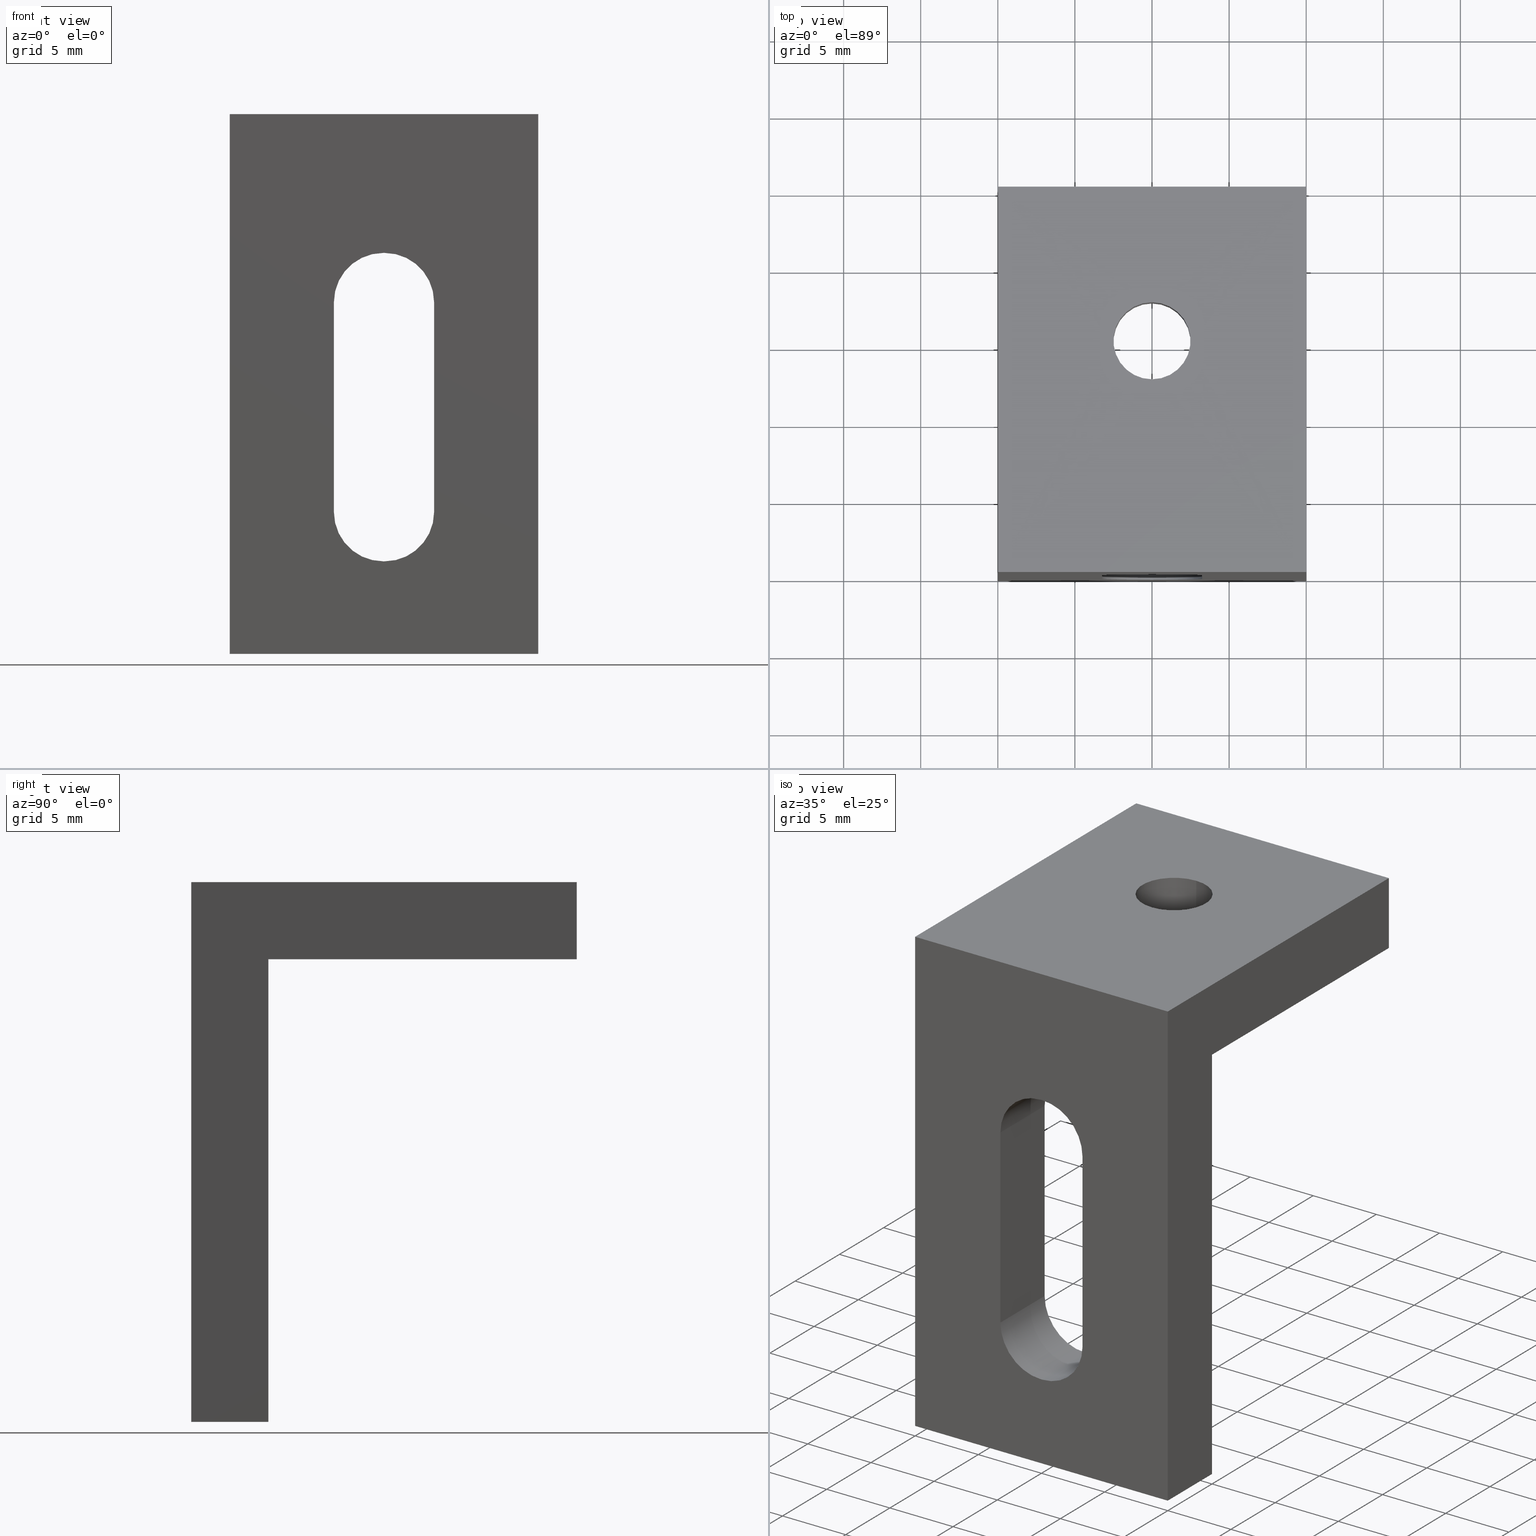
[diagram: canonical four-view strip — front | top / right | iso, engineering-drawing reading convention]
A machine part, canonical four-view strip (front | top / right | iso — engineering-drawing reading convention). The complete STEP part file that produces these views, byte-faithful:
ISO-10303-21;
HEADER;
FILE_DESCRIPTION (( 'STEP AP203' ),
    '1' );
FILE_NAME ('A30-65.STEP',
    '2018-03-20T14:13:54',
    ( 'User2' ),
    ( '' ),
    'SwSTEP 2.0',
    'SolidWorks 2007',
    '' );
FILE_SCHEMA (( 'CONFIG_CONTROL_DESIGN' ));
ENDSEC;

DATA;
#1 = CARTESIAN_POINT ( 'NONE',  ( 9.950000000000008200, 4.999999999999996400, -9.000000000000007100 ) ) ;
#2 = VERTEX_POINT ( 'NONE', #33 ) ;
#3 = CARTESIAN_POINT ( 'NONE',  ( 0.0000000000000000000, 0.0000000000000000000, 0.0000000000000000000 ) ) ;
#4 = VERTEX_POINT ( 'NONE', #23 ) ;
#5 = CARTESIAN_POINT ( 'NONE',  ( 20.00000000000000000, 0.0000000000000000000, -35.00000000000000000 ) ) ;
#6 = CARTESIAN_POINT ( 'NONE',  ( 9.999999999999998200, 12.49999999999999800, 1.528208776455758600E-015 ) ) ;
#7 = DIRECTION ( 'NONE',  ( -0.0000000000000000000, -1.000000000000000000, -1.652117596168388200E-016 ) ) ;
#8 = DIRECTION ( 'NONE',  ( 0.0000000000000000000, 1.000000000000000000, 1.652117596168388200E-016 ) ) ;
#9 = DIRECTION ( 'NONE',  ( 0.0000000000000000000, 1.000000000000000000, 8.260587980841943700E-017 ) ) ;
#10 = CARTESIAN_POINT ( 'NONE',  ( 6.750000000000008000, 4.999999999999999100, -25.80000000000000400 ) ) ;
#11 = CARTESIAN_POINT ( 'NONE',  ( 20.00000000000000000, 25.00000000000000000, -1.850437868103648700E-015 ) ) ;
#12 = CARTESIAN_POINT ( 'NONE',  ( 13.25000000000000500, 4.999999999999997300, -12.20000000000000600 ) ) ;
#13 = CARTESIAN_POINT ( 'NONE',  ( 20.00000000000000000, 0.0000000000000000000, 0.0000000000000000000 ) ) ;
#14 = CARTESIAN_POINT ( 'NONE',  ( 0.0000000000000000000, 25.00000000000000000, -1.850437868103648700E-015 ) ) ;
#15 = VERTEX_POINT ( 'NONE', #18 ) ;
#16 = CARTESIAN_POINT ( 'NONE',  ( 10.05000000000000600, -8.673617379884035500E-016, -29.00000000000000700 ) ) ;
#17 = VERTEX_POINT ( 'NONE', #70 ) ;
#18 = CARTESIAN_POINT ( 'NONE',  ( 20.00000000000000000, 4.999999999999995600, -5.000000000000000900 ) ) ;
#19 = VERTEX_POINT ( 'NONE', #13 ) ;
#20 = VERTEX_POINT ( 'NONE', #31 ) ;
#21 = VERTEX_POINT ( 'NONE', #58 ) ;
#22 = VERTEX_POINT ( 'NONE', #72 ) ;
#23 = CARTESIAN_POINT ( 'NONE',  ( 9.950000000000006400, 5.000000000000000000, -29.00000000000000400 ) ) ;
#24 = VERTEX_POINT ( 'NONE', #68 ) ;
#25 = VERTEX_POINT ( 'NONE', #3 ) ;
#26 = CARTESIAN_POINT ( 'NONE',  ( 13.25000000000000900, -1.422473250300982000E-015, -25.80000000000000800 ) ) ;
#27 = DIRECTION ( 'NONE',  ( -1.000000000000000000, -0.0000000000000000000, -0.0000000000000000000 ) ) ;
#28 = CARTESIAN_POINT ( 'NONE',  ( 0.0000000000000000000, 4.999999999999995600, -5.000000000000000900 ) ) ;
#29 = CARTESIAN_POINT ( 'NONE',  ( 9.999999999999998200, 12.49999999999999800, -5.000000000000000000 ) ) ;
#30 = DIRECTION ( 'NONE',  ( 0.0000000000000000000, 1.000000000000000000, 8.260587980841943700E-017 ) ) ;
#31 = CARTESIAN_POINT ( 'NONE',  ( 10.05000000000000400, -4.336808689942017700E-015, -9.000000000000007100 ) ) ;
#32 = DIRECTION ( 'NONE',  ( 0.0000000000000000000, 0.0000000000000000000, 1.000000000000000000 ) ) ;
#33 = CARTESIAN_POINT ( 'NONE',  ( 13.25000000000000500, 4.999999999999997300, -12.20000000000000600 ) ) ;
#34 = CARTESIAN_POINT ( 'NONE',  ( 20.00000000000000000, 25.00000000000000000, -5.000000000000000000 ) ) ;
#35 = VERTEX_POINT ( 'NONE', #59 ) ;
#36 = VERTEX_POINT ( 'NONE', #6 ) ;
#37 = DIRECTION ( 'NONE',  ( 0.0000000000000000000, -1.000000000000000000, -1.652117596168388200E-016 ) ) ;
#38 = VERTEX_POINT ( 'NONE', #29 ) ;
#39 = CARTESIAN_POINT ( 'NONE',  ( 6.750000000000008000, -3.781697177629438700E-015, -12.20000000000001000 ) ) ;
#40 = VERTEX_POINT ( 'NONE', #61 ) ;
#41 = CARTESIAN_POINT ( 'NONE',  ( 9.999999999999998200, 15.00000000000000000, 1.734723475976807100E-015 ) ) ;
#42 = CARTESIAN_POINT ( 'NONE',  ( 9.999999999999998200, 15.00000000000000000, 1.734723475976807100E-015 ) ) ;
#43 = VERTEX_POINT ( 'NONE', #26 ) ;
#44 = DIRECTION ( 'NONE',  ( 0.0000000000000000000, 1.652117596168387500E-016, -1.000000000000000000 ) ) ;
#45 = VERTEX_POINT ( 'NONE', #39 ) ;
#46 = VERTEX_POINT ( 'NONE', #34 ) ;
#47 = CARTESIAN_POINT ( 'NONE',  ( 10.05000000000000400, 3.359795370016192900E-031, -9.000000000000007100 ) ) ;
#48 = CARTESIAN_POINT ( 'NONE',  ( 20.00000000000000000, 25.00000000000000000, -1.850437868103648700E-015 ) ) ;
#49 = VERTEX_POINT ( 'NONE', #1 ) ;
#50 = VERTEX_POINT ( 'NONE', #16 ) ;
#51 = CARTESIAN_POINT ( 'NONE',  ( 6.750000000000008000, 4.999999999999997300, -12.20000000000001000 ) ) ;
#52 = CARTESIAN_POINT ( 'NONE',  ( 0.0000000000000000000, 5.000000000000000000, -35.00000000000000000 ) ) ;
#53 = CARTESIAN_POINT ( 'NONE',  ( 9.950000000000008200, -1.396039368762287700E-015, -25.80000000000000400 ) ) ;
#54 = CARTESIAN_POINT ( 'NONE',  ( 0.0000000000000000000, 25.00000000000000000, -5.000000000000000000 ) ) ;
#55 = VERTEX_POINT ( 'NONE', #10 ) ;
#56 = VERTEX_POINT ( 'NONE', #57 ) ;
#57 = CARTESIAN_POINT ( 'NONE',  ( 20.00000000000000000, 5.000000000000000000, -35.00000000000000000 ) ) ;
#58 = CARTESIAN_POINT ( 'NONE',  ( 6.750000000000008000, -1.422473250300982200E-015, -25.80000000000000400 ) ) ;
#59 = CARTESIAN_POINT ( 'NONE',  ( 13.25000000000000900, 4.999999999999999100, -25.80000000000000800 ) ) ;
#60 = VERTEX_POINT ( 'NONE', #11 ) ;
#61 = CARTESIAN_POINT ( 'NONE',  ( 10.05000000000000600, 5.000000000000000000, -29.00000000000000700 ) ) ;
#62 = DIRECTION ( 'NONE',  ( -0.0000000000000000000, -1.000000000000000000, -1.652117596168388200E-016 ) ) ;
#63 = VERTEX_POINT ( 'NONE', #5 ) ;
#64 = CARTESIAN_POINT ( 'NONE',  ( 0.0000000000000000000, 25.00000000000000000, -5.000000000000000000 ) ) ;
#65 = VERTEX_POINT ( 'NONE', #64 ) ;
#66 = CARTESIAN_POINT ( 'NONE',  ( 9.950000000000006400, -8.673617379884029600E-016, -29.00000000000000400 ) ) ;
#67 = VERTEX_POINT ( 'NONE', #75 ) ;
#68 = CARTESIAN_POINT ( 'NONE',  ( 9.950000000000006400, -8.673617379884035500E-016, -29.00000000000000400 ) ) ;
#69 = CARTESIAN_POINT ( 'NONE',  ( 9.950000000000008200, -4.336808689942017700E-015, -9.000000000000007100 ) ) ;
#70 = CARTESIAN_POINT ( 'NONE',  ( 0.0000000000000000000, 0.0000000000000000000, -35.00000000000000000 ) ) ;
#71 = CARTESIAN_POINT ( 'NONE',  ( 13.25000000000000900, -1.396039368762288100E-015, -25.80000000000000800 ) ) ;
#72 = CARTESIAN_POINT ( 'NONE',  ( 9.999999999999998200, 17.49999999999999600, -5.000000000000000000 ) ) ;
#73 = DIRECTION ( 'NONE',  ( 0.0000000000000000000, -1.445602896647339200E-016, 1.000000000000000000 ) ) ;
#74 = DIRECTION ( 'NONE',  ( 0.0000000000000000000, 1.000000000000000000, 1.652117596168388200E-016 ) ) ;
#75 = CARTESIAN_POINT ( 'NONE',  ( 9.999999999999998200, 17.49999999999999600, 1.941238175497855500E-015 ) ) ;
#76 = VERTEX_POINT ( 'NONE', #52 ) ;
#77 = DIRECTION ( 'NONE',  ( -0.0000000000000000000, 8.260587980841936300E-017, -1.000000000000000000 ) ) ;
#78 = VERTEX_POINT ( 'NONE', #28 ) ;
#79 = CARTESIAN_POINT ( 'NONE',  ( 13.25000000000000500, -3.781697177629438700E-015, -12.20000000000000600 ) ) ;
#80 = CARTESIAN_POINT ( 'NONE',  ( 0.0000000000000000000, 5.000000000000000000, -35.00000000000000000 ) ) ;
#81 = VERTEX_POINT ( 'NONE', #51 ) ;
#82 = CARTESIAN_POINT ( 'NONE',  ( 10.05000000000000400, 4.999999999999996400, -9.000000000000007100 ) ) ;
#83 = DIRECTION ( 'NONE',  ( -0.0000000000000000000, 8.260587980841936300E-017, -1.000000000000000000 ) ) ;
#84 = VERTEX_POINT ( 'NONE', #82 ) ;
#85 = VERTEX_POINT ( 'NONE', #69 ) ;
#86 = CARTESIAN_POINT ( 'NONE',  ( 9.950000000000008200, 4.999999999999996400, -9.000000000000007100 ) ) ;
#87 = DIRECTION ( 'NONE',  ( -0.0000000000000000000, -1.000000000000000000, -1.652117596168388200E-016 ) ) ;
#88 = VERTEX_POINT ( 'NONE', #14 ) ;
#89 = VERTEX_POINT ( 'NONE', #79 ) ;
#90 = DESIGN_CONTEXT ( 'detailed design', #580, 'design' ) ;
#91 = PRODUCT_DEFINITION_SHAPE ( 'NONE', 'NONE',  #606 ) ;
#92 = DIRECTION ( 'NONE',  ( 0.0000000000000000000, 0.0000000000000000000, 1.000000000000000000 ) ) ;
#93 = PLANE ( 'NONE',  #446 ) ;
#94 = DIRECTION ( 'NONE',  ( 1.734723475976806800E-016, 0.0000000000000000000, -1.000000000000000000 ) ) ;
#95 = CARTESIAN_POINT ( 'NONE',  ( 20.00000000000000000, 5.000000000000000000, -35.00000000000000000 ) ) ;
#96 = PLANE ( 'NONE',  #441 ) ;
#97 = DIRECTION ( 'NONE',  ( 0.0000000000000000000, 0.0000000000000000000, 1.000000000000000000 ) ) ;
#98 = CARTESIAN_POINT ( 'NONE',  ( 20.00000000000000000, 0.0000000000000000000, -35.00000000000000000 ) ) ;
#99 = PLANE ( 'NONE',  #439 ) ;
#100 = CARTESIAN_POINT ( 'NONE',  ( 20.00000000000000000, 4.999999999999995600, -5.000000000000000900 ) ) ;
#101 = DIRECTION ( 'NONE',  ( 0.0000000000000000000, -1.000000000000000000, -1.445602896647339200E-016 ) ) ;
#102 = DIRECTION ( 'NONE',  ( 0.0000000000000000000, 1.000000000000000000, -7.401751472414593800E-017 ) ) ;
#103 = CARTESIAN_POINT ( 'NONE',  ( 20.00000000000000000, 25.00000000000000000, -1.850437868103648700E-015 ) ) ;
#104 = DIRECTION ( 'NONE',  ( 0.0000000000000000000, -7.401751472414593800E-017, -1.000000000000000000 ) ) ;
#105 = CARTESIAN_POINT ( 'NONE',  ( 20.00000000000000000, 5.000000000000000000, -35.00000000000000000 ) ) ;
#106 = DIRECTION ( 'NONE',  ( 0.0000000000000000000, 1.445602896647339200E-016, -1.000000000000000000 ) ) ;
#107 = PLANE ( 'NONE',  #449 ) ;
#108 = PLANE ( 'NONE',  #451 ) ;
#109 = PLANE ( 'NONE',  #443 ) ;
#110 = CARTESIAN_POINT ( 'NONE',  ( 10.05000000000000400, 0.0000000000000000000, -12.20000000000000600 ) ) ;
#111 = DIRECTION ( 'NONE',  ( 0.0000000000000000000, 0.0000000000000000000, 1.000000000000000000 ) ) ;
#112 = DIRECTION ( 'NONE',  ( -0.0000000000000000000, 1.000000000000000000, 0.0000000000000000000 ) ) ;
#113 = DIRECTION ( 'NONE',  ( -1.000000000000000000, -0.0000000000000000000, 5.337610695313252400E-016 ) ) ;
#114 = DIRECTION ( 'NONE',  ( 0.0000000000000000000, 2.710505431213761100E-016, -1.000000000000000000 ) ) ;
#115 = DIRECTION ( 'NONE',  ( -1.000000000000000000, -0.0000000000000000000, 0.0000000000000000000 ) ) ;
#116 = PLANE ( 'NONE',  #447 ) ;
#117 = DIRECTION ( 'NONE',  ( 0.0000000000000000000, -0.0000000000000000000, -1.000000000000000000 ) ) ;
#118 = DIRECTION ( 'NONE',  ( -1.000000000000000000, 0.0000000000000000000, 0.0000000000000000000 ) ) ;
#119 = CARTESIAN_POINT ( 'NONE',  ( 0.0000000000000000000, 25.00000000000000000, -35.00000000000000000 ) ) ;
#120 = CARTESIAN_POINT ( 'NONE',  ( 6.750000000000008000, 5.000000000000000000, -29.00000000000000400 ) ) ;
#121 = DIRECTION ( 'NONE',  ( -0.0000000000000000000, 1.000000000000000000, 0.0000000000000000000 ) ) ;
#122 = CARTESIAN_POINT ( 'NONE',  ( 20.00000000000000000, 0.0000000000000000000, 0.0000000000000000000 ) ) ;
#123 = DIRECTION ( 'NONE',  ( 0.0000000000000000000, -0.0000000000000000000, 1.000000000000000000 ) ) ;
#124 = PLANE ( 'NONE',  #448 ) ;
#125 = DIRECTION ( 'NONE',  ( 0.0000000000000000000, -4.336808689942017100E-017, 1.000000000000000000 ) ) ;
#126 = PLANE ( 'NONE',  #438 ) ;
#127 = CARTESIAN_POINT ( 'NONE',  ( 9.950000000000008200, 4.999999999999996400, -12.20000000000000800 ) ) ;
#128 = PLANE ( 'NONE',  #553 ) ;
#129 = DIRECTION ( 'NONE',  ( 0.0000000000000000000, -1.000000000000000000, 0.0000000000000000000 ) ) ;
#130 = PLANE ( 'NONE',  #450 ) ;
#131 = DIRECTION ( 'NONE',  ( -5.337610695313253400E-016, 1.652117596168388200E-016, -1.000000000000000000 ) ) ;
#132 = CARTESIAN_POINT ( 'NONE',  ( 6.750000000000008000, -8.673617379884035500E-016, -29.00000000000000400 ) ) ;
#133 = DIRECTION ( 'NONE',  ( 0.0000000000000000000, -1.000000000000000000, -1.445602896647339200E-016 ) ) ;
#134 = PLANE ( 'NONE',  #437 ) ;
#135 = DIRECTION ( 'NONE',  ( 0.0000000000000000000, 1.652117596168389000E-016, -1.000000000000000000 ) ) ;
#136 = CARTESIAN_POINT ( 'NONE',  ( 20.00000000000000000, 25.00000000000000000, -5.000000000000000000 ) ) ;
#137 = CARTESIAN_POINT ( 'NONE',  ( 10.05000000000000800, 4.999999999999998200, -25.80000000000000800 ) ) ;
#138 = DIRECTION ( 'NONE',  ( 0.0000000000000000000, -1.000000000000000000, -1.652117596168388200E-016 ) ) ;
#139 = DIRECTION ( 'NONE',  ( 0.0000000000000000000, 2.710505431213759600E-016, -1.000000000000000000 ) ) ;
#140 = CARTESIAN_POINT ( 'NONE',  ( 6.750000000000008000, -8.673617379884035500E-016, -29.00000000000000400 ) ) ;
#141 = CARTESIAN_POINT ( 'NONE',  ( 20.00000000000000000, 5.000000000000000000, -35.00000000000000000 ) ) ;
#142 = DIRECTION ( 'NONE',  ( 0.0000000000000000000, -1.000000000000000000, -1.445602896647339200E-016 ) ) ;
#143 = CARTESIAN_POINT ( 'NONE',  ( 20.00000000000000000, 25.00000000000000000, -5.000000000000000000 ) ) ;
#144 = DIRECTION ( 'NONE',  ( -1.000000000000000000, -0.0000000000000000000, -0.0000000000000000000 ) ) ;
#145 = CARTESIAN_POINT ( 'NONE',  ( 6.750000000000008000, -4.336808689942017700E-015, -9.000000000000007100 ) ) ;
#146 = DIRECTION ( 'NONE',  ( 0.0000000000000000000, 0.0000000000000000000, 1.000000000000000000 ) ) ;
#147 = CARTESIAN_POINT ( 'NONE',  ( 9.950000000000008200, -3.808131059168133200E-015, -12.20000000000000800 ) ) ;
#148 = DIRECTION ( 'NONE',  ( 0.0000000000000000000, 1.652117596168389000E-016, -1.000000000000000000 ) ) ;
#149 = CARTESIAN_POINT ( 'NONE',  ( 20.00000000000000000, 25.00000000000000000, -35.00000000000000000 ) ) ;
#150 = DIRECTION ( 'NONE',  ( 1.000000000000000000, 0.0000000000000000000, -0.0000000000000000000 ) ) ;
#151 = CARTESIAN_POINT ( 'NONE',  ( 10.05000000000000400, -3.642919299551295700E-015, -12.20000000000000600 ) ) ;
#152 = DIRECTION ( 'NONE',  ( 1.000000000000000000, 0.0000000000000000000, 2.668805347656628200E-016 ) ) ;
#153 = CARTESIAN_POINT ( 'NONE',  ( 13.25000000000000900, -8.673617379884035500E-016, -29.00000000000000700 ) ) ;
#154 = DIRECTION ( 'NONE',  ( 0.0000000000000000000, 0.0000000000000000000, 1.000000000000000000 ) ) ;
#155 = CARTESIAN_POINT ( 'NONE',  ( 6.750000000000008000, -8.673617379884035500E-016, -29.00000000000000400 ) ) ;
#156 = DIRECTION ( 'NONE',  ( 0.0000000000000000000, 0.0000000000000000000, 1.000000000000000000 ) ) ;
#157 = DIRECTION ( 'NONE',  ( 0.0000000000000000000, -1.000000000000000000, -4.336808689942017100E-017 ) ) ;
#158 = DIRECTION ( 'NONE',  ( -1.000000000000000000, 0.0000000000000000000, 0.0000000000000000000 ) ) ;
#159 = DIRECTION ( 'NONE',  ( 0.0000000000000000000, -1.000000000000000000, -1.652117596168388200E-016 ) ) ;
#160 = DIRECTION ( 'NONE',  ( 1.000000000000000000, -2.865967179147672700E-032, 1.734723475976806800E-016 ) ) ;
#161 = CARTESIAN_POINT ( 'NONE',  ( 10.05000000000000800, -1.396039368762287500E-015, -25.80000000000000800 ) ) ;
#162 = DIRECTION ( 'NONE',  ( -1.000000000000000000, 0.0000000000000000000, 5.337610695313253400E-016 ) ) ;
#163 = DIRECTION ( 'NONE',  ( 0.0000000000000000000, -1.734723475976807300E-016, 1.000000000000000000 ) ) ;
#164 = DIRECTION ( 'NONE',  ( 0.0000000000000000000, -1.000000000000000000, -1.652117596168388200E-016 ) ) ;
#165 = DIRECTION ( 'NONE',  ( 0.0000000000000000000, 1.652117596168387500E-016, -1.000000000000000000 ) ) ;
#166 = DIRECTION ( 'NONE',  ( -2.668805347656628200E-016, -1.652117596168388200E-016, 1.000000000000000000 ) ) ;
#167 = ORIENTED_EDGE ( 'NONE', *, *, #563, .T. ) ;
#168 = VECTOR ( 'NONE', #480, 1000.000000000000000 ) ;
#169 = ORIENTED_EDGE ( 'NONE', *, *, #556, .T. ) ;
#170 = ORIENTED_EDGE ( 'NONE', *, *, #636, .F. ) ;
#171 = FACE_OUTER_BOUND ( 'NONE', #389, .T. ) ;
#172 = ORIENTED_EDGE ( 'NONE', *, *, #648, .F. ) ;
#173 = FACE_BOUND ( 'NONE', #365, .T. ) ;
#174 = ORIENTED_EDGE ( 'NONE', *, *, #491, .F. ) ;
#175 = FACE_OUTER_BOUND ( 'NONE', #300, .T. ) ;
#176 = ORIENTED_EDGE ( 'NONE', *, *, #568, .T. ) ;
#177 = ORIENTED_EDGE ( 'NONE', *, *, #555, .F. ) ;
#178 = ORIENTED_EDGE ( 'NONE', *, *, #567, .F. ) ;
#179 = FACE_BOUND ( 'NONE', #191, .T. ) ;
#180 = ORIENTED_EDGE ( 'NONE', *, *, #576, .T. ) ;
#181 = ORIENTED_EDGE ( 'NONE', *, *, #647, .F. ) ;
#182 = ORIENTED_EDGE ( 'NONE', *, *, #649, .F. ) ;
#183 = ORIENTED_EDGE ( 'NONE', *, *, #634, .T. ) ;
#184 = CIRCLE ( 'NONE', #615, 2.499999999999998700 ) ;
#185 = LINE ( 'NONE', #523, #347 ) ;
#186 = ORIENTED_EDGE ( 'NONE', *, *, #575, .F. ) ;
#187 = ORIENTED_EDGE ( 'NONE', *, *, #496, .F. ) ;
#188 = FACE_OUTER_BOUND ( 'NONE', #372, .T. ) ;
#189 = VECTOR ( 'NONE', #551, 1000.000000000000000 ) ;
#190 = ORIENTED_EDGE ( 'NONE', *, *, #651, .F. ) ;
#191 = EDGE_LOOP ( 'NONE', ( #318, #253, #208, #202, #169, #249, #363, #348 ) ) ;
#192 = VECTOR ( 'NONE', #623, 1000.000000000000000 ) ;
#193 = VECTOR ( 'NONE', #463, 1000.000000000000000 ) ;
#194 = ORIENTED_EDGE ( 'NONE', *, *, #577, .T. ) ;
#195 = ORIENTED_EDGE ( 'NONE', *, *, #640, .F. ) ;
#196 = LINE ( 'NONE', #543, #375 ) ;
#197 = ORIENTED_EDGE ( 'NONE', *, *, #561, .F. ) ;
#198 = ORIENTED_EDGE ( 'NONE', *, *, #491, .T. ) ;
#199 = EDGE_LOOP ( 'NONE', ( #245, #243, #177, #355 ) ) ;
#200 = ORIENTED_EDGE ( 'NONE', *, *, #565, .F. ) ;
#201 = LINE ( 'NONE', #464, #306 ) ;
#202 = ORIENTED_EDGE ( 'NONE', *, *, #575, .T. ) ;
#203 = ORIENTED_EDGE ( 'NONE', *, *, #650, .F. ) ;
#204 = ORIENTED_EDGE ( 'NONE', *, *, #497, .F. ) ;
#205 = ORIENTED_EDGE ( 'NONE', *, *, #572, .F. ) ;
#206 = ORIENTED_EDGE ( 'NONE', *, *, #570, .F. ) ;
#207 = ORIENTED_EDGE ( 'NONE', *, *, #572, .T. ) ;
#208 = ORIENTED_EDGE ( 'NONE', *, *, #640, .T. ) ;
#209 = ORIENTED_EDGE ( 'NONE', *, *, #560, .F. ) ;
#210 = ORIENTED_EDGE ( 'NONE', *, *, #639, .T. ) ;
#211 = VECTOR ( 'NONE', #548, 1000.000000000000000 ) ;
#212 = ORIENTED_EDGE ( 'NONE', *, *, #493, .T. ) ;
#213 = ORIENTED_EDGE ( 'NONE', *, *, #497, .T. ) ;
#214 = FACE_OUTER_BOUND ( 'NONE', #324, .T. ) ;
#215 = FACE_OUTER_BOUND ( 'NONE', #368, .T. ) ;
#216 = ORIENTED_EDGE ( 'NONE', *, *, #641, .T. ) ;
#217 = ORIENTED_EDGE ( 'NONE', *, *, #644, .T. ) ;
#218 = ORIENTED_EDGE ( 'NONE', *, *, #649, .T. ) ;
#219 = EDGE_LOOP ( 'NONE', ( #197, #187, #172, #174 ) ) ;
#220 = EDGE_LOOP ( 'NONE', ( #232, #230, #286, #225 ) ) ;
#221 = LINE ( 'NONE', #538, #377 ) ;
#222 = CIRCLE ( 'NONE', #602, 2.499999999999998700 ) ;
#223 = ORIENTED_EDGE ( 'NONE', *, *, #554, .T. ) ;
#224 = FACE_OUTER_BOUND ( 'NONE', #381, .T. ) ;
#225 = ORIENTED_EDGE ( 'NONE', *, *, #559, .T. ) ;
#226 = ORIENTED_EDGE ( 'NONE', *, *, #559, .F. ) ;
#227 = VECTOR ( 'NONE', #484, 1000.000000000000000 ) ;
#228 = LINE ( 'NONE', #466, #310 ) ;
#229 = ORIENTED_EDGE ( 'NONE', *, *, #574, .F. ) ;
#230 = ORIENTED_EDGE ( 'NONE', *, *, #633, .F. ) ;
#231 = ORIENTED_EDGE ( 'NONE', *, *, #573, .F. ) ;
#232 = ORIENTED_EDGE ( 'NONE', *, *, #498, .T. ) ;
#233 = FACE_OUTER_BOUND ( 'NONE', #313, .T. ) ;
#234 = CIRCLE ( 'NONE', #452, 3.199999999999999700 ) ;
#235 = ORIENTED_EDGE ( 'NONE', *, *, #573, .T. ) ;
#236 = FACE_OUTER_BOUND ( 'NONE', #304, .T. ) ;
#237 = VECTOR ( 'NONE', #113, 1000.000000000000000 ) ;
#238 = CYLINDRICAL_SURFACE ( 'NONE', #571, 2.499999999999998700 ) ;
#239 = ORIENTED_EDGE ( 'NONE', *, *, #496, .T. ) ;
#240 = ORIENTED_EDGE ( 'NONE', *, *, #638, .F. ) ;
#241 = ORIENTED_EDGE ( 'NONE', *, *, #554, .F. ) ;
#242 = ORIENTED_EDGE ( 'NONE', *, *, #642, .F. ) ;
#243 = ORIENTED_EDGE ( 'NONE', *, *, #494, .F. ) ;
#244 = LINE ( 'NONE', #140, #379 ) ;
#245 = ORIENTED_EDGE ( 'NONE', *, *, #495, .T. ) ;
#246 = FACE_OUTER_BOUND ( 'NONE', #265, .T. ) ;
#247 = ORIENTED_EDGE ( 'NONE', *, *, #570, .T. ) ;
#248 = VECTOR ( 'NONE', #485, 1000.000000000000000 ) ;
#249 = ORIENTED_EDGE ( 'NONE', *, *, #567, .T. ) ;
#250 = ORIENTED_EDGE ( 'NONE', *, *, #634, .F. ) ;
#251 = ORIENTED_EDGE ( 'NONE', *, *, #643, .F. ) ;
#252 = CIRCLE ( 'NONE', #442, 3.200000000000001500 ) ;
#253 = ORIENTED_EDGE ( 'NONE', *, *, #565, .T. ) ;
#254 = CYLINDRICAL_SURFACE ( 'NONE', #558, 3.200000000000001500 ) ;
#255 = ORIENTED_EDGE ( 'NONE', *, *, #646, .F. ) ;
#256 = ORIENTED_EDGE ( 'NONE', *, *, #498, .F. ) ;
#257 = ORIENTED_EDGE ( 'NONE', *, *, #641, .F. ) ;
#258 = CIRCLE ( 'NONE', #603, 2.499999999999998700 ) ;
#259 = LINE ( 'NONE', #529, #294 ) ;
#260 = VECTOR ( 'NONE', #469, 1000.000000000000000 ) ;
#261 = LINE ( 'NONE', #524, #360 ) ;
#262 = LINE ( 'NONE', #95, #266 ) ;
#263 = FACE_OUTER_BOUND ( 'NONE', #322, .T. ) ;
#264 = LINE ( 'NONE', #539, #371 ) ;
#265 = EDGE_LOOP ( 'NONE', ( #176, #353, #255, #210 ) ) ;
#266 = VECTOR ( 'NONE', #477, 1000.000000000000000 ) ;
#267 = CIRCLE ( 'NONE', #444, 3.200000000000001500 ) ;
#268 = VECTOR ( 'NONE', #489, 1000.000000000000000 ) ;
#269 = ORIENTED_EDGE ( 'NONE', *, *, #494, .T. ) ;
#270 = FACE_OUTER_BOUND ( 'NONE', #219, .T. ) ;
#271 = FACE_OUTER_BOUND ( 'NONE', #220, .T. ) ;
#272 = ORIENTED_EDGE ( 'NONE', *, *, #555, .T. ) ;
#273 = ORIENTED_EDGE ( 'NONE', *, *, #635, .F. ) ;
#274 = ORIENTED_EDGE ( 'NONE', *, *, #642, .T. ) ;
#275 = ORIENTED_EDGE ( 'NONE', *, *, #650, .T. ) ;
#276 = CYLINDRICAL_SURFACE ( 'NONE', #445, 3.200000000000001500 ) ;
#277 = VECTOR ( 'NONE', #533, 1000.000000000000000 ) ;
#278 = LINE ( 'NONE', #54, #394 ) ;
#279 = ORIENTED_EDGE ( 'NONE', *, *, #566, .F. ) ;
#280 = VECTOR ( 'NONE', #550, 1000.000000000000000 ) ;
#281 = ORIENTED_EDGE ( 'NONE', *, *, #577, .F. ) ;
#282 = LINE ( 'NONE', #475, #227 ) ;
#283 = VECTOR ( 'NONE', #455, 1000.000000000000000 ) ;
#284 = ORIENTED_EDGE ( 'NONE', *, *, #651, .T. ) ;
#285 = ORIENTED_EDGE ( 'NONE', *, *, #566, .T. ) ;
#286 = ORIENTED_EDGE ( 'NONE', *, *, #563, .F. ) ;
#287 = ORIENTED_EDGE ( 'NONE', *, *, #557, .F. ) ;
#288 = ORIENTED_EDGE ( 'NONE', *, *, #645, .F. ) ;
#289 = ORIENTED_EDGE ( 'NONE', *, *, #648, .T. ) ;
#290 = ORIENTED_EDGE ( 'NONE', *, *, #557, .T. ) ;
#291 = ORIENTED_EDGE ( 'NONE', *, *, #644, .F. ) ;
#292 = CIRCLE ( 'NONE', #622, 3.200000000000001500 ) ;
#293 = CYLINDRICAL_SURFACE ( 'NONE', #562, 2.499999999999998700 ) ;
#294 = VECTOR ( 'NONE', #536, 1000.000000000000000 ) ;
#295 = ORIENTED_EDGE ( 'NONE', *, *, #637, .F. ) ;
#296 = FACE_OUTER_BOUND ( 'NONE', #343, .T. ) ;
#297 = ORIENTED_EDGE ( 'NONE', *, *, #646, .T. ) ;
#298 = FACE_OUTER_BOUND ( 'NONE', #311, .T. ) ;
#299 = LINE ( 'NONE', #12, #309 ) ;
#300 = EDGE_LOOP ( 'NONE', ( #274, #314, #346, #340 ) ) ;
#301 = LINE ( 'NONE', #525, #211 ) ;
#302 = ORIENTED_EDGE ( 'NONE', *, *, #493, .F. ) ;
#303 = ORIENTED_EDGE ( 'NONE', *, *, #564, .F. ) ;
#304 = EDGE_LOOP ( 'NONE', ( #216, #239, #181, #339 ) ) ;
#305 = LINE ( 'NONE', #457, #193 ) ;
#306 = VECTOR ( 'NONE', #456, 1000.000000000000000 ) ;
#307 = LINE ( 'NONE', #534, #315 ) ;
#308 = LINE ( 'NONE', #459, #168 ) ;
#309 = VECTOR ( 'NONE', #8, 1000.000000000000000 ) ;
#310 = VECTOR ( 'NONE', #476, 1000.000000000000000 ) ;
#311 = EDGE_LOOP ( 'NONE', ( #178, #295, #209, #350 ) ) ;
#312 = VECTOR ( 'NONE', #74, 1000.000000000000000 ) ;
#313 = EDGE_LOOP ( 'NONE', ( #195, #352, #290, #213 ) ) ;
#314 = ORIENTED_EDGE ( 'NONE', *, *, #637, .T. ) ;
#315 = VECTOR ( 'NONE', #549, 1000.000000000000000 ) ;
#316 = LINE ( 'NONE', #143, #319 ) ;
#317 = FACE_OUTER_BOUND ( 'NONE', #328, .T. ) ;
#318 = ORIENTED_EDGE ( 'NONE', *, *, #564, .T. ) ;
#319 = VECTOR ( 'NONE', #156, 1000.000000000000000 ) ;
#320 = ORIENTED_EDGE ( 'NONE', *, *, #560, .T. ) ;
#321 = LINE ( 'NONE', #626, #192 ) ;
#322 = EDGE_LOOP ( 'NONE', ( #217, #349, #190, #269 ) ) ;
#323 = ORIENTED_EDGE ( 'NONE', *, *, #569, .T. ) ;
#324 = EDGE_LOOP ( 'NONE', ( #186, #204, #335, #273 ) ) ;
#325 = FACE_OUTER_BOUND ( 'NONE', #199, .T. ) ;
#326 = VECTOR ( 'NONE', #7, 1000.000000000000000 ) ;
#327 = EDGE_LOOP ( 'NONE', ( #373, #207 ) ) ;
#328 = EDGE_LOOP ( 'NONE', ( #205, #337, #235, #281 ) ) ;
#329 = ORIENTED_EDGE ( 'NONE', *, *, #636, .T. ) ;
#330 = VECTOR ( 'NONE', #521, 1000.000000000000000 ) ;
#331 = ORIENTED_EDGE ( 'NONE', *, *, #633, .T. ) ;
#332 = LINE ( 'NONE', #522, #189 ) ;
#333 = LINE ( 'NONE', #86, #312 ) ;
#334 = VECTOR ( 'NONE', #87, 1000.000000000000000 ) ;
#335 = ORIENTED_EDGE ( 'NONE', *, *, #576, .F. ) ;
#336 = LINE ( 'NONE', #120, #237 ) ;
#337 = ORIENTED_EDGE ( 'NONE', *, *, #645, .T. ) ;
#338 = LINE ( 'NONE', #531, #277 ) ;
#339 = ORIENTED_EDGE ( 'NONE', *, *, #492, .T. ) ;
#340 = ORIENTED_EDGE ( 'NONE', *, *, #635, .T. ) ;
#341 = LINE ( 'NONE', #141, #358 ) ;
#342 = CIRCLE ( 'NONE', #607, 3.199999999999999700 ) ;
#343 = EDGE_LOOP ( 'NONE', ( #247, #240, #170, #331 ) ) ;
#344 = CYLINDRICAL_SURFACE ( 'NONE', #453, 3.199999999999999700 ) ;
#345 = CLOSED_SHELL ( 'NONE', ( #501, #511, #513, #506, #507, #514, #515, #504, #510, #503, #509, #518, #512, #517, #505, #508, #516, #502 ) ) ;
#346 = ORIENTED_EDGE ( 'NONE', *, *, #556, .F. ) ;
#347 = VECTOR ( 'NONE', #532, 1000.000000000000000 ) ;
#348 = ORIENTED_EDGE ( 'NONE', *, *, #561, .T. ) ;
#349 = ORIENTED_EDGE ( 'NONE', *, *, #639, .F. ) ;
#350 = ORIENTED_EDGE ( 'NONE', *, *, #492, .F. ) ;
#351 = ORIENTED_EDGE ( 'NONE', *, *, #495, .F. ) ;
#352 = ORIENTED_EDGE ( 'NONE', *, *, #574, .T. ) ;
#353 = ORIENTED_EDGE ( 'NONE', *, *, #569, .F. ) ;
#354 = LINE ( 'NONE', #479, #260 ) ;
#355 = ORIENTED_EDGE ( 'NONE', *, *, #638, .T. ) ;
#356 = LINE ( 'NONE', #462, #248 ) ;
#357 = LINE ( 'NONE', #487, #268 ) ;
#358 = VECTOR ( 'NONE', #144, 1000.000000000000000 ) ;
#359 = FACE_OUTER_BOUND ( 'NONE', #362, .T. ) ;
#360 = VECTOR ( 'NONE', #527, 1000.000000000000000 ) ;
#361 = ORIENTED_EDGE ( 'NONE', *, *, #568, .F. ) ;
#362 = EDGE_LOOP ( 'NONE', ( #303, #198, #285, #212 ) ) ;
#363 = ORIENTED_EDGE ( 'NONE', *, *, #647, .T. ) ;
#364 = CIRCLE ( 'NONE', #613, 2.499999999999998700 ) ;
#365 = EDGE_LOOP ( 'NONE', ( #203, #231 ) ) ;
#366 = VECTOR ( 'NONE', #530, 1000.000000000000000 ) ;
#367 = LINE ( 'NONE', #80, #397 ) ;
#368 = EDGE_LOOP ( 'NONE', ( #183, #226, #182, #323 ) ) ;
#369 = CIRCLE ( 'NONE', #436, 3.199999999999999700 ) ;
#370 = LINE ( 'NONE', #467, #283 ) ;
#371 = VECTOR ( 'NONE', #542, 1000.000000000000000 ) ;
#372 = EDGE_LOOP ( 'NONE', ( #288, #251, #194, #275 ) ) ;
#373 = ORIENTED_EDGE ( 'NONE', *, *, #643, .T. ) ;
#374 = CIRCLE ( 'NONE', #598, 3.200000000000001500 ) ;
#375 = VECTOR ( 'NONE', #545, 1000.000000000000000 ) ;
#376 = LINE ( 'NONE', #537, #330 ) ;
#377 = VECTOR ( 'NONE', #547, 1000.000000000000000 ) ;
#378 = LINE ( 'NONE', #526, #280 ) ;
#379 = VECTOR ( 'NONE', #163, 1000.000000000000000 ) ;
#380 = EDGE_LOOP ( 'NONE', ( #272, #284, #297, #218, #167, #329 ) ) ;
#381 = EDGE_LOOP ( 'NONE', ( #351, #206, #256, #250, #361, #291 ) ) ;
#382 = FACE_BOUND ( 'NONE', #387, .T. ) ;
#383 = FACE_OUTER_BOUND ( 'NONE', #380, .T. ) ;
#384 = VECTOR ( 'NONE', #62, 1000.000000000000000 ) ;
#385 = LINE ( 'NONE', #66, #326 ) ;
#386 = CYLINDRICAL_SURFACE ( 'NONE', #440, 3.199999999999999700 ) ;
#387 = EDGE_LOOP ( 'NONE', ( #257, #320, #242, #180, #287, #223, #279, #289 ) ) ;
#388 = LINE ( 'NONE', #520, #366 ) ;
#389 = EDGE_LOOP ( 'NONE', ( #200, #302, #241, #229 ) ) ;
#390 = CIRCLE ( 'NONE', #604, 3.199999999999999700 ) ;
#391 = FACE_BOUND ( 'NONE', #327, .T. ) ;
#392 = LINE ( 'NONE', #48, #393 ) ;
#393 = VECTOR ( 'NONE', #27, 1000.000000000000000 ) ;
#394 = VECTOR ( 'NONE', #32, 1000.000000000000000 ) ;
#395 = LINE ( 'NONE', #47, #384 ) ;
#396 = LINE ( 'NONE', #71, #334 ) ;
#397 = VECTOR ( 'NONE', #73, 1000.000000000000000 ) ;
#398 = PERSON_AND_ORGANIZATION ( #653, #422 ) ;
#399 = LOCAL_TIME ( 11, 13, 54.00000000000000000, #419 ) ;
#400 = LOCAL_TIME ( 11, 13, 54.00000000000000000, #435 ) ;
#401 = LOCAL_TIME ( 11, 13, 54.00000000000000000, #416 ) ;
#402 = APPROVAL_PERSON_ORGANIZATION ( #425, #600, #585 ) ;
#403 = PERSON_AND_ORGANIZATION ( #653, #422 ) ;
#404 = DATE_AND_TIME ( #415, #408 ) ;
#405 = CALENDAR_DATE ( 2018, 20, 3 ) ;
#406 = LOCAL_TIME ( 11, 13, 54.00000000000000000, #412 ) ;
#407 = APPROVAL_PERSON_ORGANIZATION ( #409, #616, #593 ) ;
#408 = LOCAL_TIME ( 11, 13, 54.00000000000000000, #431 ) ;
#409 = PERSON_AND_ORGANIZATION ( #653, #422 ) ;
#410 = PERSON_AND_ORGANIZATION ( #653, #422 ) ;
#411 = PERSON_AND_ORGANIZATION ( #653, #422 ) ;
#412 = COORDINATED_UNIVERSAL_TIME_OFFSET ( 3, 0, .BEHIND. ) ;
#413 = PERSON_AND_ORGANIZATION ( #653, #422 ) ;
#414 = CALENDAR_DATE ( 2018, 20, 3 ) ;
#415 = CALENDAR_DATE ( 2018, 20, 3 ) ;
#416 = COORDINATED_UNIVERSAL_TIME_OFFSET ( 3, 0, .BEHIND. ) ;
#417 = APPROVAL_DATE_TIME ( #423, #616 ) ;
#418 = APPROVAL_DATE_TIME ( #434, #600 ) ;
#419 = COORDINATED_UNIVERSAL_TIME_OFFSET ( 3, 0, .BEHIND. ) ;
#420 = APPROVAL_PERSON_ORGANIZATION ( #413, #620, #583 ) ;
#421 = DATE_AND_TIME ( #426, #400 ) ;
#422 = ORGANIZATION ( 'UNSPECIFIED', 'UNSPECIFIED', '' ) ;
#423 = DATE_AND_TIME ( #428, #399 ) ;
#424 = SHAPE_DEFINITION_REPRESENTATION ( #91, #519 ) ;
#425 = PERSON_AND_ORGANIZATION ( #653, #422 ) ;
#426 = CALENDAR_DATE ( 2018, 20, 3 ) ;
#427 = DATE_AND_TIME ( #414, #401 ) ;
#428 = CALENDAR_DATE ( 2018, 20, 3 ) ;
#429 = SECURITY_CLASSIFICATION ( '', '', #591 ) ;
#430 =( GEOMETRIC_REPRESENTATION_CONTEXT ( 3 ) GLOBAL_UNCERTAINTY_ASSIGNED_CONTEXT ( ( #499 ) ) GLOBAL_UNIT_ASSIGNED_CONTEXT ( ( #625, #632, #631 ) ) REPRESENTATION_CONTEXT ( 'NONE', 'WORKASPACE' ) );
#431 = COORDINATED_UNIVERSAL_TIME_OFFSET ( 3, 0, .BEHIND. ) ;
#432 = PERSON_AND_ORGANIZATION ( #653, #422 ) ;
#433 = APPROVAL_DATE_TIME ( #427, #620 ) ;
#434 = DATE_AND_TIME ( #405, #406 ) ;
#435 = COORDINATED_UNIVERSAL_TIME_OFFSET ( 3, 0, .BEHIND. ) ;
#436 = AXIS2_PLACEMENT_3D ( 'NONE', #127, #142, #114 ) ;
#437 = AXIS2_PLACEMENT_3D ( 'NONE', #155, #131, #162 ) ;
#438 = AXIS2_PLACEMENT_3D ( 'NONE', #100, #125, #157 ) ;
#439 = AXIS2_PLACEMENT_3D ( 'NONE', #98, #97, #150 ) ;
#440 = AXIS2_PLACEMENT_3D ( 'NONE', #147, #138, #148 ) ;
#441 = AXIS2_PLACEMENT_3D ( 'NONE', #132, #115, #92 ) ;
#442 = AXIS2_PLACEMENT_3D ( 'NONE', #137, #133, #139 ) ;
#443 = AXIS2_PLACEMENT_3D ( 'NONE', #103, #104, #102 ) ;
#444 = AXIS2_PLACEMENT_3D ( 'NONE', #454, #483, #460 ) ;
#445 = AXIS2_PLACEMENT_3D ( 'NONE', #161, #159, #165 ) ;
#446 = AXIS2_PLACEMENT_3D ( 'NONE', #153, #160, #94 ) ;
#447 = AXIS2_PLACEMENT_3D ( 'NONE', #136, #129, #117 ) ;
#448 = AXIS2_PLACEMENT_3D ( 'NONE', #119, #118, #154 ) ;
#449 = AXIS2_PLACEMENT_3D ( 'NONE', #105, #101, #106 ) ;
#450 = AXIS2_PLACEMENT_3D ( 'NONE', #145, #166, #152 ) ;
#451 = AXIS2_PLACEMENT_3D ( 'NONE', #122, #121, #123 ) ;
#452 = AXIS2_PLACEMENT_3D ( 'NONE', #110, #112, #111 ) ;
#453 = AXIS2_PLACEMENT_3D ( 'NONE', #151, #164, #135 ) ;
#454 = CARTESIAN_POINT ( 'NONE',  ( 10.05000000000000800, 0.0000000000000000000, -25.80000000000000800 ) ) ;
#455 = DIRECTION ( 'NONE',  ( -1.000000000000000000, -0.0000000000000000000, -0.0000000000000000000 ) ) ;
#456 = DIRECTION ( 'NONE',  ( 1.734723475976806800E-016, 1.734723475976806800E-016, -1.000000000000000000 ) ) ;
#457 = CARTESIAN_POINT ( 'NONE',  ( 20.00000000000000000, 0.0000000000000000000, -35.00000000000000000 ) ) ;
#458 = DIRECTION ( 'NONE',  ( 0.0000000000000000000, 1.000000000000000000, 0.0000000000000000000 ) ) ;
#459 = CARTESIAN_POINT ( 'NONE',  ( 0.0000000000000000000, 0.0000000000000000000, 0.0000000000000000000 ) ) ;
#460 = DIRECTION ( 'NONE',  ( 0.0000000000000000000, 0.0000000000000000000, 1.000000000000000000 ) ) ;
#461 = DIRECTION ( 'NONE',  ( 0.0000000000000000000, 8.260587980841936300E-017, -1.000000000000000000 ) ) ;
#462 = CARTESIAN_POINT ( 'NONE',  ( 13.25000000000000900, -8.673617379884035500E-016, -29.00000000000000700 ) ) ;
#463 = DIRECTION ( 'NONE',  ( -1.000000000000000000, -0.0000000000000000000, -0.0000000000000000000 ) ) ;
#464 = CARTESIAN_POINT ( 'NONE',  ( 13.25000000000000900, 5.000000000000000000, -29.00000000000000700 ) ) ;
#465 = DIRECTION ( 'NONE',  ( 0.0000000000000000000, 8.260587980841936300E-017, -1.000000000000000000 ) ) ;
#466 = CARTESIAN_POINT ( 'NONE',  ( 0.0000000000000000000, 0.0000000000000000000, -35.00000000000000000 ) ) ;
#467 = CARTESIAN_POINT ( 'NONE',  ( 20.00000000000000000, 4.999999999999995600, -5.000000000000000900 ) ) ;
#468 = DIRECTION ( 'NONE',  ( 0.0000000000000000000, 0.0000000000000000000, 1.000000000000000000 ) ) ;
#469 = DIRECTION ( 'NONE',  ( 0.0000000000000000000, 1.000000000000000000, 4.336808689942017100E-017 ) ) ;
#470 = CARTESIAN_POINT ( 'NONE',  ( 9.999999999999998200, 15.00000000000000000, 1.734723475976807100E-015 ) ) ;
#471 = CARTESIAN_POINT ( 'NONE',  ( 9.950000000000008200, 0.0000000000000000000, -25.80000000000000400 ) ) ;
#472 = DIRECTION ( 'NONE',  ( -0.0000000000000000000, 1.000000000000000000, 0.0000000000000000000 ) ) ;
#473 = CARTESIAN_POINT ( 'NONE',  ( 9.950000000000008200, 4.999999999999998200, -25.80000000000000400 ) ) ;
#474 = CARTESIAN_POINT ( 'NONE',  ( 9.950000000000008200, 0.0000000000000000000, -12.20000000000000800 ) ) ;
#475 = CARTESIAN_POINT ( 'NONE',  ( 9.999999999999998200, 17.49999999999999600, 1.941238175497855500E-015 ) ) ;
#476 = DIRECTION ( 'NONE',  ( 0.0000000000000000000, 1.000000000000000000, 0.0000000000000000000 ) ) ;
#477 = DIRECTION ( 'NONE',  ( 0.0000000000000000000, -1.445602896647339200E-016, 1.000000000000000000 ) ) ;
#478 = DIRECTION ( 'NONE',  ( 0.0000000000000000000, 0.0000000000000000000, 1.000000000000000000 ) ) ;
#479 = CARTESIAN_POINT ( 'NONE',  ( 0.0000000000000000000, 4.999999999999995600, -5.000000000000000900 ) ) ;
#480 = DIRECTION ( 'NONE',  ( 0.0000000000000000000, 0.0000000000000000000, -1.000000000000000000 ) ) ;
#481 = CARTESIAN_POINT ( 'NONE',  ( 9.999999999999998200, 15.00000000000000000, -5.000000000000000000 ) ) ;
#482 = DIRECTION ( 'NONE',  ( -0.0000000000000000000, 1.000000000000000000, 0.0000000000000000000 ) ) ;
#483 = DIRECTION ( 'NONE',  ( -0.0000000000000000000, 1.000000000000000000, 0.0000000000000000000 ) ) ;
#484 = DIRECTION ( 'NONE',  ( -0.0000000000000000000, 8.260587980841936300E-017, -1.000000000000000000 ) ) ;
#485 = DIRECTION ( 'NONE',  ( 1.734723475976806800E-016, 1.734723475976806800E-016, -1.000000000000000000 ) ) ;
#486 = DIRECTION ( 'NONE',  ( 0.0000000000000000000, -1.000000000000000000, -1.445602896647339200E-016 ) ) ;
#487 = CARTESIAN_POINT ( 'NONE',  ( 10.05000000000000600, 5.000000000000000000, -29.00000000000000400 ) ) ;
#488 = DIRECTION ( 'NONE',  ( 0.0000000000000000000, 2.710505431213759600E-016, -1.000000000000000000 ) ) ;
#489 = DIRECTION ( 'NONE',  ( 0.0000000000000000000, 1.000000000000000000, 1.652117596168388200E-016 ) ) ;
#490 = DIRECTION ( 'NONE',  ( 0.0000000000000000000, 1.000000000000000000, 8.260587980841943700E-017 ) ) ;
#491 = EDGE_CURVE ( 'NONE', #89, #2, #299, .T. ) ;
#492 = EDGE_CURVE ( 'NONE', #85, #49, #333, .T. ) ;
#493 = EDGE_CURVE ( 'NONE', #35, #43, #396, .T. ) ;
#494 = EDGE_CURVE ( 'NONE', #60, #88, #392, .T. ) ;
#495 = EDGE_CURVE ( 'NONE', #65, #88, #278, .T. ) ;
#496 = EDGE_CURVE ( 'NONE', #84, #20, #395, .T. ) ;
#497 = EDGE_CURVE ( 'NONE', #4, #24, #385, .T. ) ;
#498 = EDGE_CURVE ( 'NONE', #76, #78, #367, .T. ) ;
#499 = UNCERTAINTY_MEASURE_WITH_UNIT (LENGTH_MEASURE( 1.000000000000000100E-005 ), #625, 'distance_accuracy_value', 'NONE');
#500 = MANIFOLD_SOLID_BREP ( 'NONE', #345 ) ;
#501 = ADVANCED_FACE ( 'NONE', ( #317 ), #293, .F. ) ;
#502 = ADVANCED_FACE ( 'NONE', ( #214 ), #254, .F. ) ;
#503 = ADVANCED_FACE ( 'NONE', ( #188 ), #238, .F. ) ;
#504 = ADVANCED_FACE ( 'NONE', ( #383 ), #128, .F. ) ;
#505 = ADVANCED_FACE ( 'NONE', ( #270 ), #344, .F. ) ;
#506 = ADVANCED_FACE ( 'NONE', ( #179, #246 ), #108, .F. ) ;
#507 = ADVANCED_FACE ( 'NONE', ( #215 ), #99, .F. ) ;
#508 = ADVANCED_FACE ( 'NONE', ( #298 ), #386, .F. ) ;
#509 = ADVANCED_FACE ( 'NONE', ( #175 ), #96, .F. ) ;
#510 = ADVANCED_FACE ( 'NONE', ( #224 ), #124, .T. ) ;
#511 = ADVANCED_FACE ( 'NONE', ( #325 ), #116, .F. ) ;
#512 = ADVANCED_FACE ( 'NONE', ( #359 ), #93, .F. ) ;
#513 = ADVANCED_FACE ( 'NONE', ( #391, #263 ), #109, .F. ) ;
#514 = ADVANCED_FACE ( 'NONE', ( #382, #271 ), #107, .F. ) ;
#515 = ADVANCED_FACE ( 'NONE', ( #173, #296 ), #126, .F. ) ;
#516 = ADVANCED_FACE ( 'NONE', ( #171 ), #276, .F. ) ;
#517 = ADVANCED_FACE ( 'NONE', ( #236 ), #130, .F. ) ;
#518 = ADVANCED_FACE ( 'NONE', ( #233 ), #134, .F. ) ;
#519 = ADVANCED_BREP_SHAPE_REPRESENTATION ( 'A30-65', ( #500, #611 ), #430 ) ;
#520 = CARTESIAN_POINT ( 'NONE',  ( 6.750000000000008000, -4.336808689942017700E-015, -9.000000000000007100 ) ) ;
#521 = DIRECTION ( 'NONE',  ( -1.000000000000000000, -0.0000000000000000000, -0.0000000000000000000 ) ) ;
#522 = CARTESIAN_POINT ( 'NONE',  ( 20.00000000000000000, 4.999999999999995600, -5.000000000000000900 ) ) ;
#523 = CARTESIAN_POINT ( 'NONE',  ( 20.00000000000000000, 0.0000000000000000000, -35.00000000000000000 ) ) ;
#524 = CARTESIAN_POINT ( 'NONE',  ( 20.00000000000000000, 0.0000000000000000000, 0.0000000000000000000 ) ) ;
#525 = CARTESIAN_POINT ( 'NONE',  ( 6.750000000000008000, 5.000000000000000000, -29.00000000000000400 ) ) ;
#526 = CARTESIAN_POINT ( 'NONE',  ( 9.999999999999998200, 12.49999999999999800, 1.528208776455758600E-015 ) ) ;
#527 = DIRECTION ( 'NONE',  ( 0.0000000000000000000, 0.0000000000000000000, -1.000000000000000000 ) ) ;
#528 = DIRECTION ( 'NONE',  ( 0.0000000000000000000, 8.260587980841936300E-017, -1.000000000000000000 ) ) ;
#529 = CARTESIAN_POINT ( 'NONE',  ( 6.750000000000008000, -3.808131059168133200E-015, -12.20000000000000800 ) ) ;
#530 = DIRECTION ( 'NONE',  ( 1.000000000000000000, 0.0000000000000000000, 2.668805347656627700E-016 ) ) ;
#531 = CARTESIAN_POINT ( 'NONE',  ( 6.750000000000008000, -8.673617379884035500E-016, -29.00000000000000400 ) ) ;
#532 = DIRECTION ( 'NONE',  ( 0.0000000000000000000, 1.000000000000000000, 0.0000000000000000000 ) ) ;
#533 = DIRECTION ( 'NONE',  ( -1.000000000000000000, -0.0000000000000000000, 5.337610695313252400E-016 ) ) ;
#534 = CARTESIAN_POINT ( 'NONE',  ( 6.750000000000008000, 4.999999999999996400, -9.000000000000007100 ) ) ;
#535 = CARTESIAN_POINT ( 'NONE',  ( 9.999999999999998200, 15.00000000000000000, 1.734723475976807100E-015 ) ) ;
#536 = DIRECTION ( 'NONE',  ( -0.0000000000000000000, -1.000000000000000000, -1.652117596168388200E-016 ) ) ;
#537 = CARTESIAN_POINT ( 'NONE',  ( 20.00000000000000000, 25.00000000000000000, -5.000000000000000000 ) ) ;
#538 = CARTESIAN_POINT ( 'NONE',  ( 0.0000000000000000000, 25.00000000000000000, -1.850437868103648700E-015 ) ) ;
#539 = CARTESIAN_POINT ( 'NONE',  ( 6.750000000000008000, 4.999999999999999100, -25.80000000000000400 ) ) ;
#540 = DIRECTION ( 'NONE',  ( 0.0000000000000000000, 2.710505431213761100E-016, -1.000000000000000000 ) ) ;
#541 = DIRECTION ( 'NONE',  ( 0.0000000000000000000, 1.000000000000000000, 8.260587980841943700E-017 ) ) ;
#542 = DIRECTION ( 'NONE',  ( 0.0000000000000000000, 1.000000000000000000, 1.652117596168388200E-016 ) ) ;
#543 = CARTESIAN_POINT ( 'NONE',  ( 20.00000000000000000, 0.0000000000000000000, 0.0000000000000000000 ) ) ;
#544 = DIRECTION ( 'NONE',  ( 0.0000000000000000000, -1.000000000000000000, -1.445602896647339200E-016 ) ) ;
#545 = DIRECTION ( 'NONE',  ( -1.000000000000000000, -0.0000000000000000000, -0.0000000000000000000 ) ) ;
#546 = CARTESIAN_POINT ( 'NONE',  ( 10.05000000000000400, 4.999999999999996400, -12.20000000000000600 ) ) ;
#547 = DIRECTION ( 'NONE',  ( 0.0000000000000000000, -1.000000000000000000, 7.401751472414593800E-017 ) ) ;
#548 = DIRECTION ( 'NONE',  ( 0.0000000000000000000, -1.734723475976807300E-016, 1.000000000000000000 ) ) ;
#549 = DIRECTION ( 'NONE',  ( 1.000000000000000000, 0.0000000000000000000, 2.668805347656627700E-016 ) ) ;
#550 = DIRECTION ( 'NONE',  ( -0.0000000000000000000, 8.260587980841936300E-017, -1.000000000000000000 ) ) ;
#551 = DIRECTION ( 'NONE',  ( 0.0000000000000000000, 1.000000000000000000, 4.336808689942017100E-017 ) ) ;
#552 = CARTESIAN_POINT ( 'NONE',  ( 9.999999999999998200, 15.00000000000000000, -5.000000000000000000 ) ) ;
#553 = AXIS2_PLACEMENT_3D ( 'NONE', #149, #158, #146 ) ;
#554 = EDGE_CURVE ( 'NONE', #40, #35, #252, .T. ) ;
#555 = EDGE_CURVE ( 'NONE', #46, #60, #316, .T. ) ;
#556 = EDGE_CURVE ( 'NONE', #21, #45, #244, .T. ) ;
#557 = EDGE_CURVE ( 'NONE', #40, #4, #336, .T. ) ;
#558 = AXIS2_PLACEMENT_3D ( 'NONE', #53, #37, #44 ) ;
#559 = EDGE_CURVE ( 'NONE', #56, #76, #341, .T. ) ;
#560 = EDGE_CURVE ( 'NONE', #49, #81, #369, .T. ) ;
#561 = EDGE_CURVE ( 'NONE', #20, #89, #234, .T. ) ;
#562 = AXIS2_PLACEMENT_3D ( 'NONE', #41, #83, #9 ) ;
#563 = EDGE_CURVE ( 'NONE', #56, #15, #262, .T. ) ;
#564 = EDGE_CURVE ( 'NONE', #89, #43, #356, .T. ) ;
#565 = EDGE_CURVE ( 'NONE', #43, #50, #267, .T. ) ;
#566 = EDGE_CURVE ( 'NONE', #2, #35, #201, .T. ) ;
#567 = EDGE_CURVE ( 'NONE', #45, #85, #342, .T. ) ;
#568 = EDGE_CURVE ( 'NONE', #25, #17, #308, .T. ) ;
#569 = EDGE_CURVE ( 'NONE', #63, #17, #305, .T. ) ;
#570 = EDGE_CURVE ( 'NONE', #78, #65, #354, .T. ) ;
#571 = AXIS2_PLACEMENT_3D ( 'NONE', #42, #77, #30 ) ;
#572 = EDGE_CURVE ( 'NONE', #36, #67, #184, .T. ) ;
#573 = EDGE_CURVE ( 'NONE', #38, #22, #222, .T. ) ;
#574 = EDGE_CURVE ( 'NONE', #50, #40, #357, .T. ) ;
#575 = EDGE_CURVE ( 'NONE', #24, #21, #292, .T. ) ;
#576 = EDGE_CURVE ( 'NONE', #55, #4, #374, .T. ) ;
#577 = EDGE_CURVE ( 'NONE', #67, #22, #282, .T. ) ;
#578 = APPLICATION_CONTEXT ( 'configuration controlled 3d designs of mechanical parts and assemblies' ) ;
#579 = APPLICATION_PROTOCOL_DEFINITION ( 'international standard', 'config_control_design', 1994, #578 ) ;
#580 = APPLICATION_CONTEXT ( 'configuration controlled 3d designs of mechanical parts and assemblies' ) ;
#581 = DATE_TIME_ROLE ( 'creation_date' ) ;
#582 = APPROVAL_STATUS ( 'not_yet_approved' ) ;
#583 = APPROVAL_ROLE ( '' ) ;
#584 = PERSON_AND_ORGANIZATION_ROLE ( 'creator' ) ;
#585 = APPROVAL_ROLE ( '' ) ;
#586 = PERSON_AND_ORGANIZATION_ROLE ( 'design_owner' ) ;
#587 = APPLICATION_PROTOCOL_DEFINITION ( 'international standard', 'config_control_design', 1994, #580 ) ;
#588 = PERSON_AND_ORGANIZATION_ROLE ( 'creator' ) ;
#589 = MECHANICAL_CONTEXT ( 'NONE', #578, 'mechanical' ) ;
#590 = PERSON_AND_ORGANIZATION_ROLE ( 'design_supplier' ) ;
#591 = SECURITY_CLASSIFICATION_LEVEL ( 'unclassified' ) ;
#592 = DATE_TIME_ROLE ( 'classification_date' ) ;
#593 = APPROVAL_ROLE ( '' ) ;
#594 = PERSON_AND_ORGANIZATION_ROLE ( 'classification_officer' ) ;
#595 = APPROVAL_STATUS ( 'not_yet_approved' ) ;
#596 = APPROVAL_STATUS ( 'not_yet_approved' ) ;
#597 = CC_DESIGN_PERSON_AND_ORGANIZATION_ASSIGNMENT ( #398, #586, ( #652 ) ) ;
#598 = AXIS2_PLACEMENT_3D ( 'NONE', #473, #486, #488 ) ;
#599 = CC_DESIGN_SECURITY_CLASSIFICATION ( #429, ( #608 ) ) ;
#600 = APPROVAL ( #596, 'UNSPECIFIED' ) ;
#601 = CC_DESIGN_PERSON_AND_ORGANIZATION_ASSIGNMENT ( #410, #584, ( #606 ) ) ;
#602 = AXIS2_PLACEMENT_3D ( 'NONE', #481, #461, #458 ) ;
#603 = AXIS2_PLACEMENT_3D ( 'NONE', #535, #528, #541 ) ;
#604 = AXIS2_PLACEMENT_3D ( 'NONE', #546, #544, #540 ) ;
#605 = CC_DESIGN_DATE_AND_TIME_ASSIGNMENT ( #421, #592, ( #429 ) ) ;
#606 = PRODUCT_DEFINITION ( 'UNKNOWN', '', #608, #90 ) ;
#607 = AXIS2_PLACEMENT_3D ( 'NONE', #474, #482, #478 ) ;
#608 = PRODUCT_DEFINITION_FORMATION_WITH_SPECIFIED_SOURCE ( 'ANY', '', #652, .NOT_KNOWN. ) ;
#609 = CC_DESIGN_PERSON_AND_ORGANIZATION_ASSIGNMENT ( #403, #590, ( #608 ) ) ;
#610 = CC_DESIGN_DATE_AND_TIME_ASSIGNMENT ( #404, #581, ( #606 ) ) ;
#611 = AXIS2_PLACEMENT_3D ( 'NONE', #628, #629, #630 ) ;
#612 = CC_DESIGN_APPROVAL ( #620, ( #608 ) ) ;
#613 = AXIS2_PLACEMENT_3D ( 'NONE', #552, #624, #627 ) ;
#614 = CC_DESIGN_APPROVAL ( #600, ( #606 ) ) ;
#615 = AXIS2_PLACEMENT_3D ( 'NONE', #470, #465, #490 ) ;
#616 = APPROVAL ( #595, 'UNSPECIFIED' ) ;
#617 = CC_DESIGN_PERSON_AND_ORGANIZATION_ASSIGNMENT ( #411, #588, ( #608 ) ) ;
#618 = CC_DESIGN_APPROVAL ( #616, ( #429 ) ) ;
#619 = CC_DESIGN_PERSON_AND_ORGANIZATION_ASSIGNMENT ( #432, #594, ( #429 ) ) ;
#620 = APPROVAL ( #582, 'UNSPECIFIED' ) ;
#621 = PRODUCT_RELATED_PRODUCT_CATEGORY ( 'detail', '', ( #652 ) ) ;
#622 = AXIS2_PLACEMENT_3D ( 'NONE', #471, #472, #468 ) ;
#623 = DIRECTION ( 'NONE',  ( 0.0000000000000000000, -1.000000000000000000, 7.401751472414593800E-017 ) ) ;
#624 = DIRECTION ( 'NONE',  ( 0.0000000000000000000, 8.260587980841936300E-017, -1.000000000000000000 ) ) ;
#625 =( LENGTH_UNIT ( ) NAMED_UNIT ( * ) SI_UNIT ( .MILLI., .METRE. ) );
#626 = CARTESIAN_POINT ( 'NONE',  ( 20.00000000000000000, 25.00000000000000000, -1.850437868103648700E-015 ) ) ;
#627 = DIRECTION ( 'NONE',  ( 0.0000000000000000000, 1.000000000000000000, 0.0000000000000000000 ) ) ;
#628 = CARTESIAN_POINT ( 'NONE',  ( 0.0000000000000000000, 0.0000000000000000000, 0.0000000000000000000 ) ) ;
#629 = DIRECTION ( 'NONE',  ( 0.0000000000000000000, 0.0000000000000000000, 1.000000000000000000 ) ) ;
#630 = DIRECTION ( 'NONE',  ( 1.000000000000000000, 0.0000000000000000000, 0.0000000000000000000 ) ) ;
#631 =( NAMED_UNIT ( * ) SI_UNIT ( $, .STERADIAN. ) SOLID_ANGLE_UNIT ( ) );
#632 =( NAMED_UNIT ( * ) PLANE_ANGLE_UNIT ( ) SI_UNIT ( $, .RADIAN. ) );
#633 = EDGE_CURVE ( 'NONE', #15, #78, #370, .T. ) ;
#634 = EDGE_CURVE ( 'NONE', #17, #76, #228, .T. ) ;
#635 = EDGE_CURVE ( 'NONE', #21, #55, #264, .T. ) ;
#636 = EDGE_CURVE ( 'NONE', #15, #46, #332, .T. ) ;
#637 = EDGE_CURVE ( 'NONE', #81, #45, #259, .T. ) ;
#638 = EDGE_CURVE ( 'NONE', #46, #65, #376, .T. ) ;
#639 = EDGE_CURVE ( 'NONE', #19, #25, #196, .T. ) ;
#640 = EDGE_CURVE ( 'NONE', #50, #24, #338, .T. ) ;
#641 = EDGE_CURVE ( 'NONE', #49, #84, #307, .T. ) ;
#642 = EDGE_CURVE ( 'NONE', #55, #81, #301, .T. ) ;
#643 = EDGE_CURVE ( 'NONE', #67, #36, #258, .T. ) ;
#644 = EDGE_CURVE ( 'NONE', #88, #25, #221, .T. ) ;
#645 = EDGE_CURVE ( 'NONE', #36, #38, #378, .T. ) ;
#646 = EDGE_CURVE ( 'NONE', #19, #63, #261, .T. ) ;
#647 = EDGE_CURVE ( 'NONE', #85, #20, #388, .T. ) ;
#648 = EDGE_CURVE ( 'NONE', #2, #84, #390, .T. ) ;
#649 = EDGE_CURVE ( 'NONE', #63, #56, #185, .T. ) ;
#650 = EDGE_CURVE ( 'NONE', #22, #38, #364, .T. ) ;
#651 = EDGE_CURVE ( 'NONE', #60, #19, #321, .T. ) ;
#652 = PRODUCT ( 'A30-65', 'A30-65', '', ( #589 ) ) ;
#653 = PERSON ( 'UNSPECIFIED', 'UNSPECIFIED', 'UNSPECIFIED', ('UNSPECIFIED'), ('UNSPECIFIED'), ('UNSPECIFIED') ) ;
ENDSEC;
END-ISO-10303-21;
